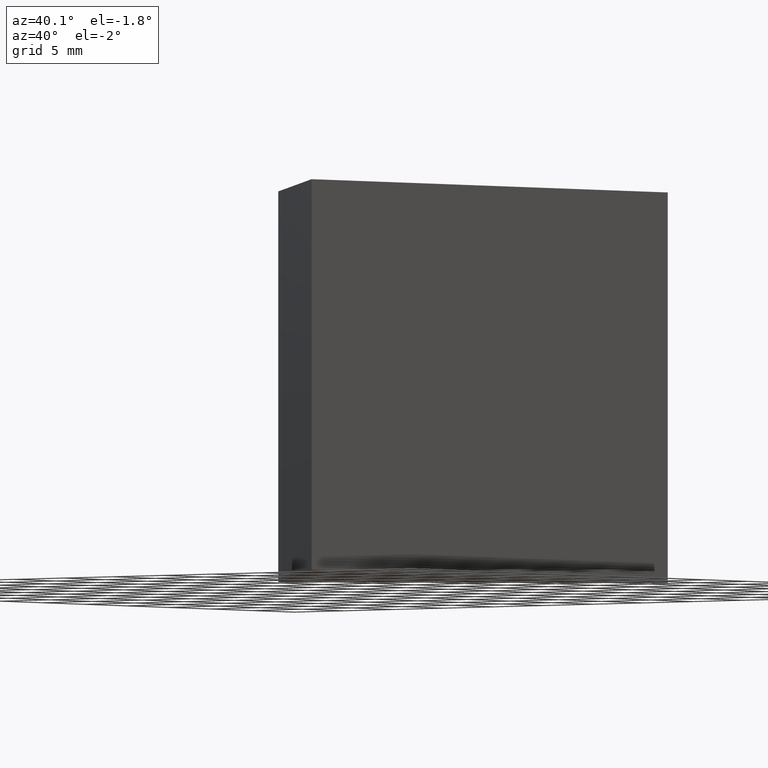
[diagram: clean part render]
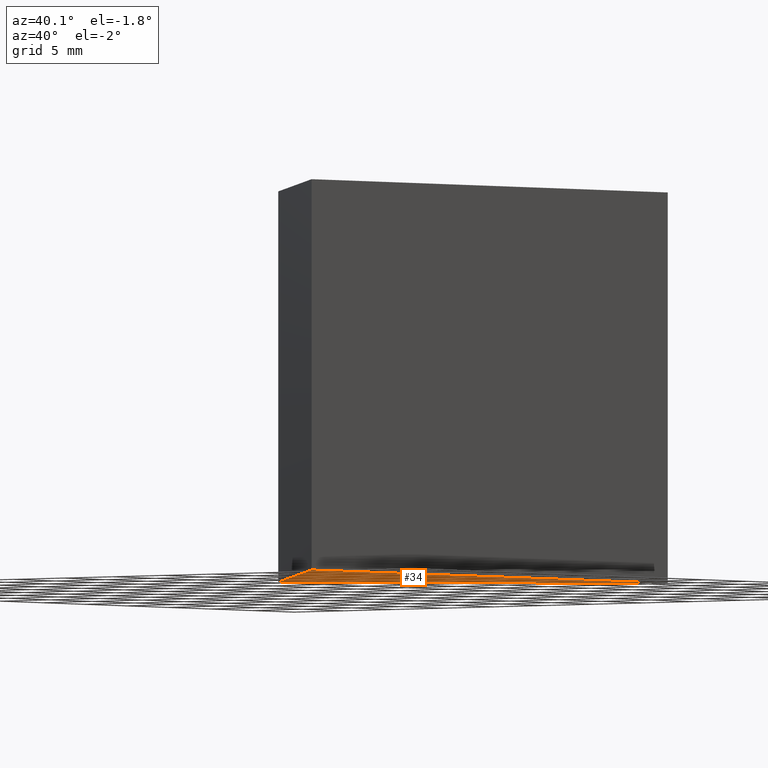
[diagram: same view with one face highlighted and labeled with its STEP entity id]
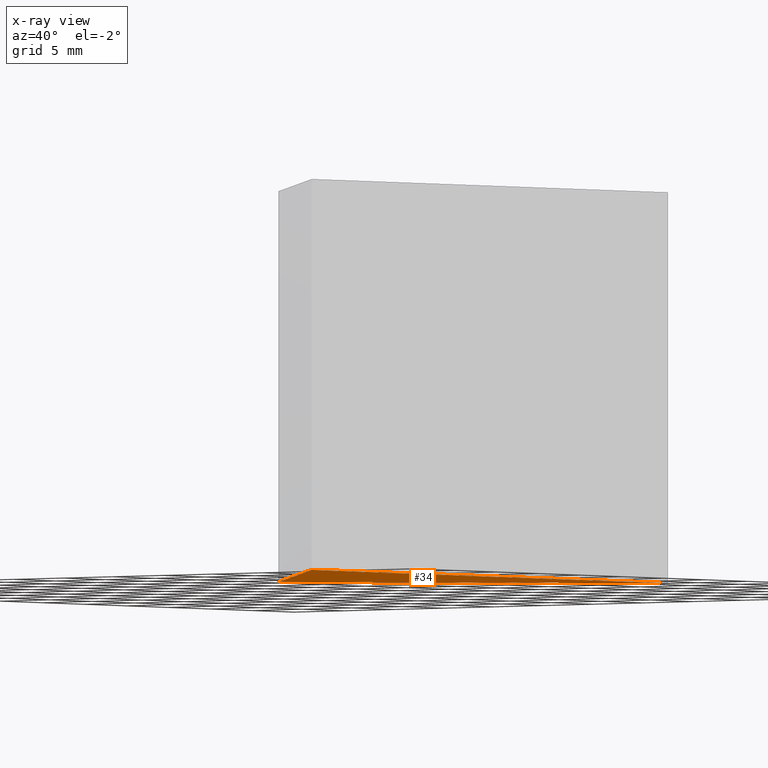
[diagram: x-ray of the same camera — body ghosted, the highlighted face saturated]
A machine part, auxiliary view. The second image highlights one B-rep face of the part: STEP entity #34.
The next image is the same camera in x-ray: the body ghosted, the highlighted face saturated — about 0% of this face is hidden behind the body in this view.
In plain terms, the highlighted planar face has unit normal (0, -0, 1).
Its self-contained STEP definition (entity closure, byte-faithful):
#4 = DIRECTION ( 'NONE',  ( 1.000000000000000000, 0.0000000000000000000, -0.0000000000000000000 ) ) ;
#6 = VERTEX_POINT ( 'NONE', #30 ) ;
#7 = DIRECTION ( 'NONE',  ( 0.7071067811865481300, -0.7071067811865470200, 0.0000000000000000000 ) ) ;
#20 = VECTOR ( 'NONE', #134, 1000.000000000000000 ) ;
#22 = CARTESIAN_POINT ( 'NONE',  ( 295.0610192926383200, 47.66525907389522100, 0.0000000000000000000 ) ) ;
#30 = CARTESIAN_POINT ( 'NONE',  ( 295.0610192926383200, 90.09166594508805300, 0.0000000000000000000 ) ) ;
#34 = ADVANCED_FACE ( 'NONE', ( #94 ), #128, .F. ) ;
#37 = AXIS2_PLACEMENT_3D ( 'NONE', #107, #81, #4 ) ;
#48 = LINE ( 'NONE', #67, #82 ) ;
#63 = EDGE_CURVE ( 'NONE', #137, #6, #48, .T. ) ;
#67 = CARTESIAN_POINT ( 'NONE',  ( 295.0610192926383200, 47.66525907389522100, 0.0000000000000000000 ) ) ;
#73 = CARTESIAN_POINT ( 'NONE',  ( 295.0610192926383200, 90.09166594508805300, 0.0000000000000000000 ) ) ;
#81 = DIRECTION ( 'NONE',  ( 0.0000000000000000000, -0.0000000000000000000, 1.000000000000000000 ) ) ;
#82 = VECTOR ( 'NONE', #129, 1000.000000000000000 ) ;
#91 = EDGE_CURVE ( 'NONE', #124, #137, #150, .T. ) ;
#93 = EDGE_LOOP ( 'NONE', ( #149, #102, #135 ) ) ;
#94 = FACE_OUTER_BOUND ( 'NONE', #93, .T. ) ;
#102 = ORIENTED_EDGE ( 'NONE', *, *, #91, .F. ) ;
#107 = CARTESIAN_POINT ( 'NONE',  ( 0.0000000000000000000, 0.0000000000000000000, 0.0000000000000000000 ) ) ;
#111 = CARTESIAN_POINT ( 'NONE',  ( 273.8478158570418900, 68.87846250949164100, 0.0000000000000000000 ) ) ;
#117 = VECTOR ( 'NONE', #7, 1000.000000000000000 ) ;
#121 = CARTESIAN_POINT ( 'NONE',  ( 273.8478158570418900, 68.87846250949164100, 0.0000000000000000000 ) ) ;
#124 = VERTEX_POINT ( 'NONE', #121 ) ;
#127 = LINE ( 'NONE', #73, #20 ) ;
#128 = PLANE ( 'NONE',  #37 ) ;
#129 = DIRECTION ( 'NONE',  ( 0.0000000000000000000, 1.000000000000000000, 0.0000000000000000000 ) ) ;
#134 = DIRECTION ( 'NONE',  ( -0.7071067811865484600, -0.7071067811865465700, 0.0000000000000000000 ) ) ;
#135 = ORIENTED_EDGE ( 'NONE', *, *, #142, .F. ) ;
#137 = VERTEX_POINT ( 'NONE', #22 ) ;
#142 = EDGE_CURVE ( 'NONE', #6, #124, #127, .T. ) ;
#149 = ORIENTED_EDGE ( 'NONE', *, *, #63, .F. ) ;
#150 = LINE ( 'NONE', #111, #117 ) ;